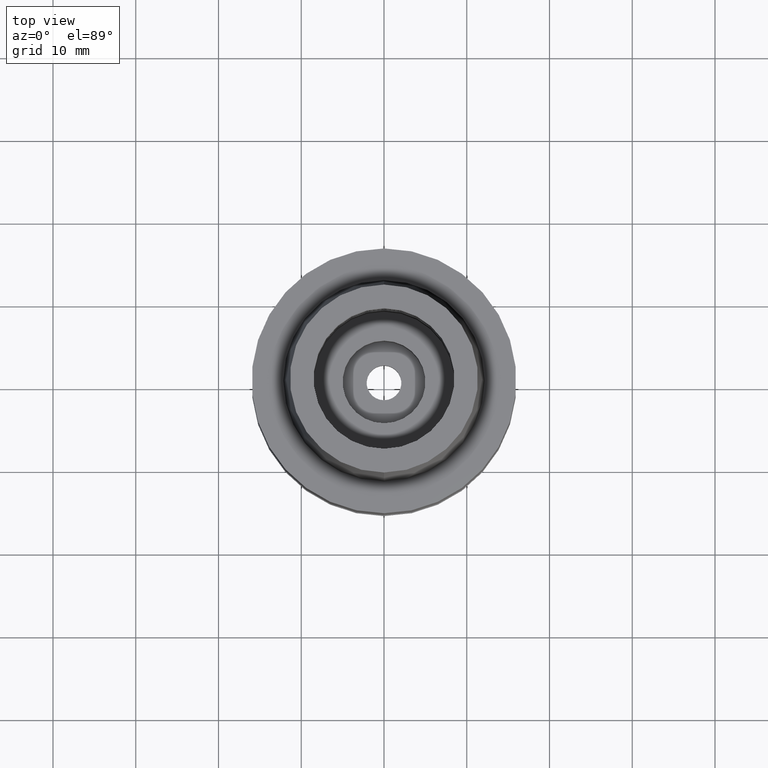
[diagram: clean part render]
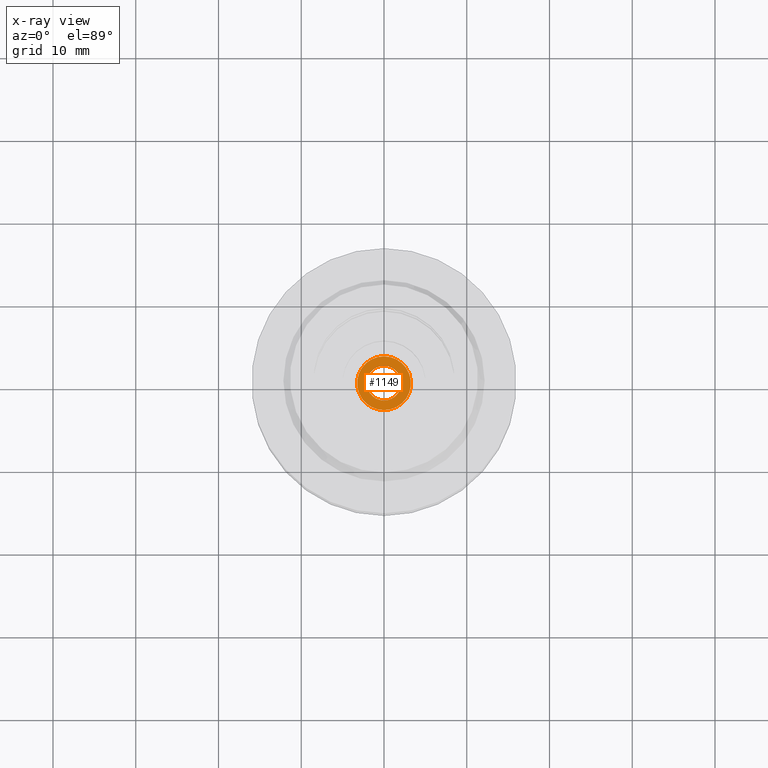
[diagram: x-ray — body ghosted, one internal face saturated and labeled with its STEP entity id]
A machine part, top view, then the same camera in x-ray: the body is ghosted and one INTERNAL B-rep face — a face not visible from any outside direction — is saturated and labeled: STEP entity #1149.
In plain terms, the highlighted planar face has unit normal (0, 0, -1).
Its self-contained STEP definition (entity closure, byte-faithful):
#322=CARTESIAN_POINT('',(0.E0,1.467126865379E-14,-1.7E1));
#323=DIRECTION('',(0.E0,0.E0,1.E0));
#324=DIRECTION('',(0.E0,-1.E0,0.E0));
#325=AXIS2_PLACEMENT_3D('',#322,#323,#324);
#330=CARTESIAN_POINT('',(0.E0,1.467126865379E-14,-1.7E1));
#331=DIRECTION('',(0.E0,0.E0,1.E0));
#332=DIRECTION('',(0.E0,1.E0,0.E0));
#333=AXIS2_PLACEMENT_3D('',#330,#331,#332);
#338=CARTESIAN_POINT('',(0.E0,1.467126865379E-14,-1.7E1));
#339=DIRECTION('',(0.E0,0.E0,-1.E0));
#340=DIRECTION('',(0.E0,-1.E0,0.E0));
#341=AXIS2_PLACEMENT_3D('',#338,#339,#340);
#346=CARTESIAN_POINT('',(0.E0,1.467126865379E-14,-1.7E1));
#347=DIRECTION('',(0.E0,0.E0,-1.E0));
#348=DIRECTION('',(0.E0,1.E0,0.E0));
#349=AXIS2_PLACEMENT_3D('',#346,#347,#348);
#768=CARTESIAN_POINT('',(0.E0,2.1E0,-1.7E1));
#769=VERTEX_POINT('',#768);
#770=CARTESIAN_POINT('',(0.E0,-2.1E0,-1.7E1));
#771=VERTEX_POINT('',#770);
#772=CARTESIAN_POINT('',(0.E0,-3.25E0,-1.7E1));
#773=CARTESIAN_POINT('',(0.E0,3.25E0,-1.7E1));
#774=VERTEX_POINT('',#772);
#775=VERTEX_POINT('',#773);
#1134=CARTESIAN_POINT('',(0.E0,1.016456843292E-14,-1.7E1));
#1135=DIRECTION('',(0.E0,0.E0,-1.E0));
#1136=DIRECTION('',(0.E0,-1.E0,0.E0));
#1137=AXIS2_PLACEMENT_3D('',#1134,#1135,#1136);
#1138=PLANE('',#1137);
#1140=ORIENTED_EDGE('',*,*,#1139,.T.);
#1142=ORIENTED_EDGE('',*,*,#1141,.T.);
#1143=EDGE_LOOP('',(#1140,#1142));
#1144=FACE_OUTER_BOUND('',#1143,.F.);
#1145=ORIENTED_EDGE('',*,*,#1127,.T.);
#1146=ORIENTED_EDGE('',*,*,#1116,.T.);
#1147=EDGE_LOOP('',(#1145,#1146));
#1148=FACE_BOUND('',#1147,.F.);
#326=CIRCLE('',#325,3.25E0);
#334=CIRCLE('',#333,3.25E0);
#342=CIRCLE('',#341,2.1E0);
#350=CIRCLE('',#349,2.1E0);
#1116=EDGE_CURVE('',#769,#771,#350,.T.);
#1127=EDGE_CURVE('',#771,#769,#342,.T.);
#1139=EDGE_CURVE('',#774,#775,#326,.T.);
#1141=EDGE_CURVE('',#775,#774,#334,.T.);
#1149=ADVANCED_FACE('',(#1144,#1148),#1138,.T.);